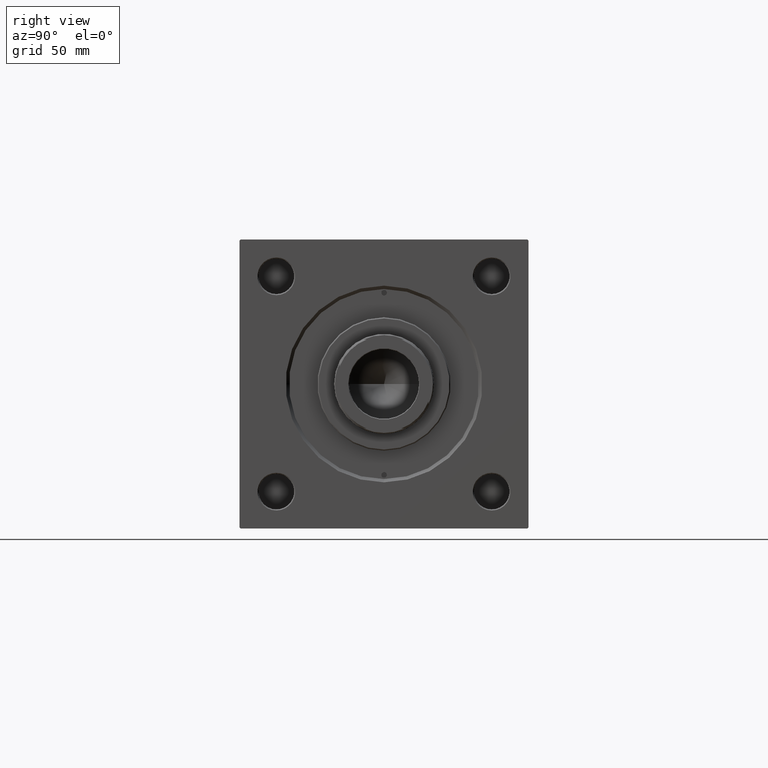
[diagram: clean part render]
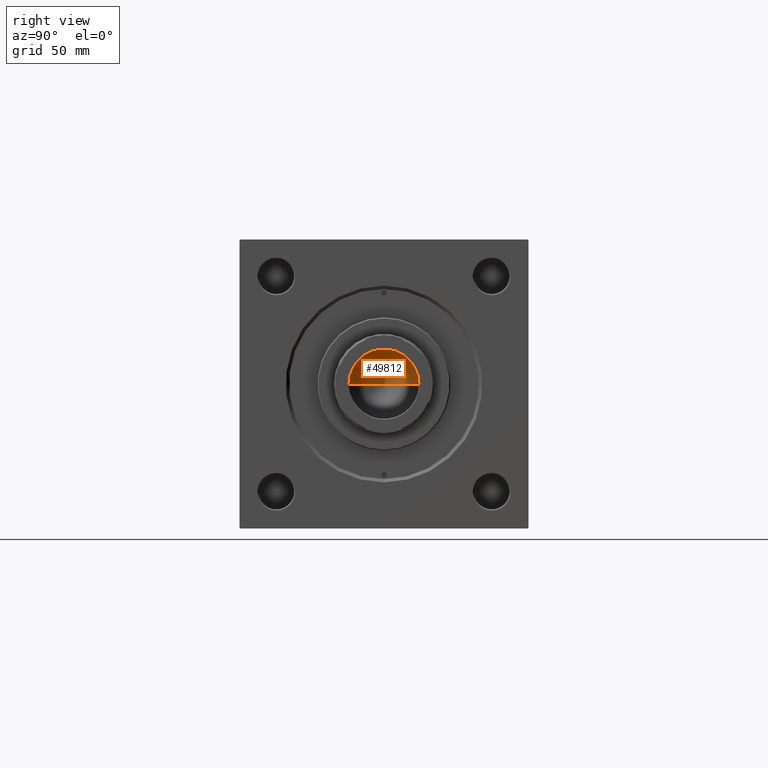
[diagram: same view with one face highlighted and labeled with its STEP entity id]
A machine part, right view. The second image highlights one B-rep face of the part: STEP entity #49812.
In plain terms, the highlighted conical surface has half-angle 59 deg.
Its self-contained STEP definition (entity closure, byte-faithful):
#1174 = CARTESIAN_POINT ( 'NONE',  ( 0.000000000000000000, 0.000000000000000000, 152.9999999999999716 ) ) ;
#1235 = DIRECTION ( 'NONE',  ( -0.000000000000000000, -0.000000000000000000, 1.000000000000000000 ) ) ;
#2783 = AXIS2_PLACEMENT_3D ( 'NONE', #36407, #1235, #48764 ) ;
#3439 = EDGE_LOOP ( 'NONE', ( #50638, #45470, #17958 ) ) ;
#8885 = VERTEX_POINT ( 'NONE', #25241 ) ;
#11045 = VECTOR ( 'NONE', #31353, 1000.000000000000000 ) ;
#11600 = LINE ( 'NONE', #15701, #11045 ) ;
#15701 = CARTESIAN_POINT ( 'NONE',  ( -15.74999999999998934, 1.928818708657080161E-15, 152.9999999999999716 ) ) ;
#16463 = EDGE_CURVE ( 'NONE', #27319, #30326, #44225, .T. ) ;
#17958 = ORIENTED_EDGE ( 'NONE', *, *, #32178, .T. ) ;
#20819 = CARTESIAN_POINT ( 'NONE',  ( 15.74999999999998934, 0.000000000000000000, 152.9999999999999716 ) ) ;
#24782 = FACE_OUTER_BOUND ( 'NONE', #3439, .T. ) ;
#25241 = CARTESIAN_POINT ( 'NONE',  ( -15.74999999999998934, 1.928818708657080161E-15, 152.9999999999999716 ) ) ;
#26231 = AXIS2_PLACEMENT_3D ( 'NONE', #1174, #40211, #44594 ) ;
#27319 = VERTEX_POINT ( 'NONE', #48130 ) ;
#28020 = DIRECTION ( 'NONE',  ( 0.8571673007021118895, 0.000000000000000000, 0.5150380749100549327 ) ) ;
#30326 = VERTEX_POINT ( 'NONE', #20819 ) ;
#31353 = DIRECTION ( 'NONE',  ( -0.8571673007021118895, 1.049727191138618079E-16, 0.5150380749100549327 ) ) ;
#31946 = CONICAL_SURFACE ( 'NONE', #26231, 15.74999999999998934, 1.029744258676653645 ) ;
#32178 = EDGE_CURVE ( 'NONE', #8885, #30326, #50399, .T. ) ;
#32758 = EDGE_CURVE ( 'NONE', #27319, #8885, #11600, .T. ) ;
#36407 = CARTESIAN_POINT ( 'NONE',  ( 0.000000000000000000, 0.000000000000000000, 152.9999999999999716 ) ) ;
#40211 = DIRECTION ( 'NONE',  ( -0.000000000000000000, -0.000000000000000000, 1.000000000000000000 ) ) ;
#42276 = VECTOR ( 'NONE', #28020, 1000.000000000000000 ) ;
#44225 = LINE ( 'NONE', #48333, #42276 ) ;
#44594 = DIRECTION ( 'NONE',  ( 1.000000000000000000, 0.000000000000000000, 0.000000000000000000 ) ) ;
#45470 = ORIENTED_EDGE ( 'NONE', *, *, #32758, .T. ) ;
#48130 = CARTESIAN_POINT ( 'NONE',  ( -1.584115414415908206E-14, 0.000000000000000000, 143.5364452503158930 ) ) ;
#48333 = CARTESIAN_POINT ( 'NONE',  ( 15.74999999999998934, 0.000000000000000000, 152.9999999999999716 ) ) ;
#48764 = DIRECTION ( 'NONE',  ( 1.000000000000000000, 0.000000000000000000, 0.000000000000000000 ) ) ;
#49812 = ADVANCED_FACE ( 'NONE', ( #24782 ), #31946, .F. ) ;
#50399 = CIRCLE ( 'NONE', #2783, 15.74999999999998934 ) ;
#50638 = ORIENTED_EDGE ( 'NONE', *, *, #16463, .F. ) ;